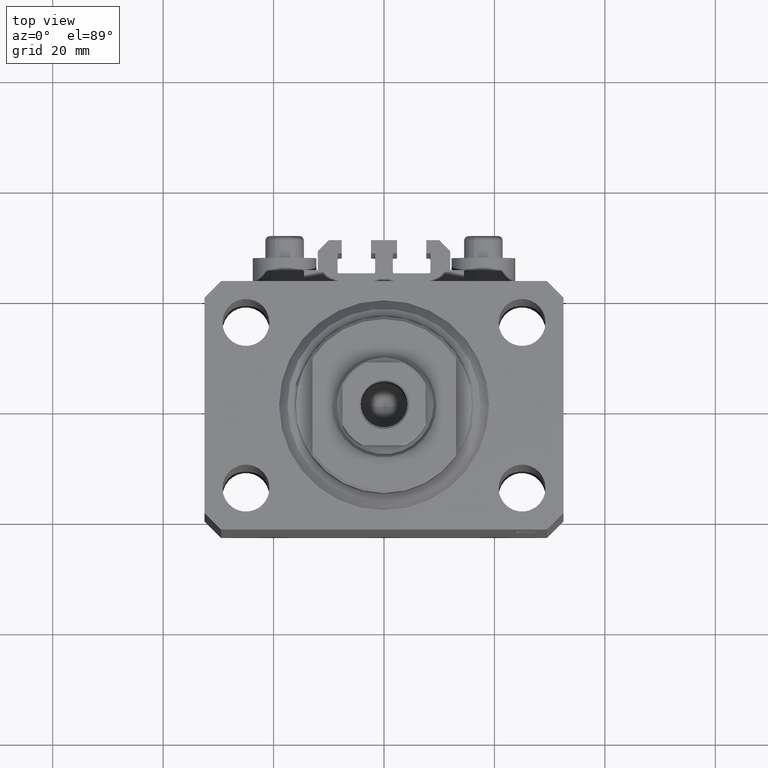
[diagram: clean part render]
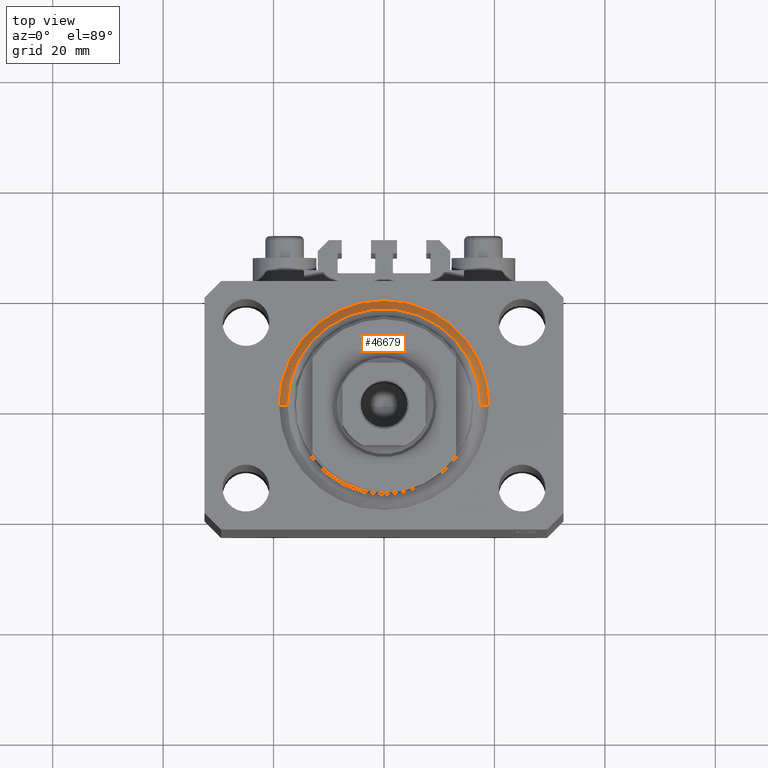
[diagram: same view with one face highlighted and labeled with its STEP entity id]
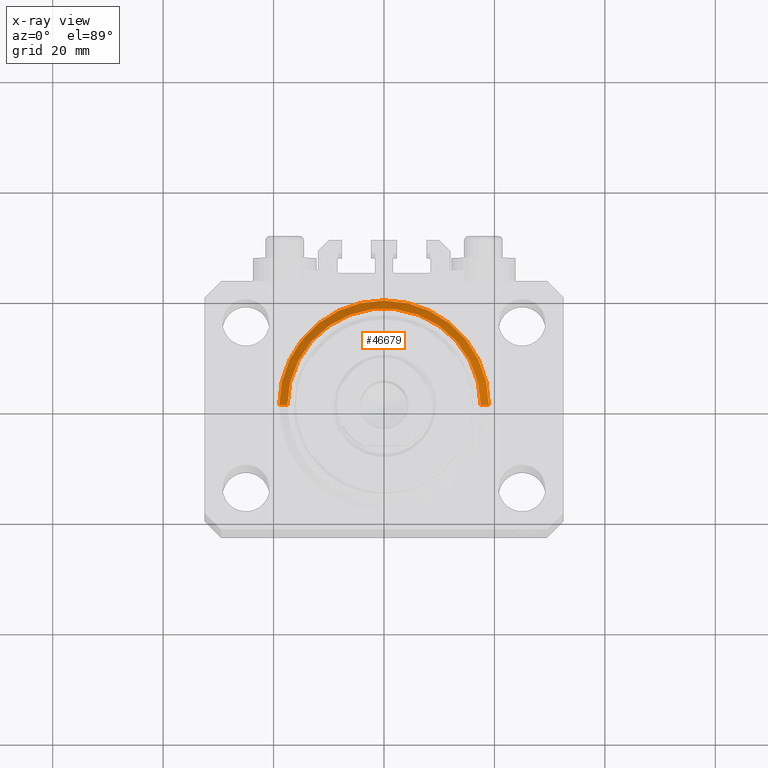
[diagram: x-ray of the same camera — body ghosted, the highlighted face saturated]
A machine part, top view. The second image highlights one B-rep face of the part: STEP entity #46679.
The next image is the same camera in x-ray: the body ghosted, the highlighted face saturated — about 0% of this face is hidden behind the body in this view.
In plain terms, the highlighted conical surface has half-angle 45 deg.
Its self-contained STEP definition (entity closure, byte-faithful):
#925 = EDGE_CURVE ( 'NONE', #30651, #45217, #34791, .T. ) ;
#2389 = CIRCLE ( 'NONE', #6192, 17.49999999999999289 ) ;
#4319 = DIRECTION ( 'NONE',  ( 1.000000000000000000, 0.000000000000000000, 0.000000000000000000 ) ) ;
#5891 = EDGE_CURVE ( 'NONE', #42631, #30651, #37187, .T. ) ;
#6192 = AXIS2_PLACEMENT_3D ( 'NONE', #26873, #37166, #4319 ) ;
#6582 = ORIENTED_EDGE ( 'NONE', *, *, #925, .F. ) ;
#6828 = CONICAL_SURFACE ( 'NONE', #22929, 19.00000000000000000, 0.7853981633974492782 ) ;
#11099 = VECTOR ( 'NONE', #40553, 1000.000000000000000 ) ;
#12867 = DIRECTION ( 'NONE',  ( 1.000000000000000000, 0.000000000000000000, 0.000000000000000000 ) ) ;
#14654 = CARTESIAN_POINT ( 'NONE',  ( -19.00000000000000000, 0.000000000000000000, 1.500000000000004885 ) ) ;
#16469 = FACE_OUTER_BOUND ( 'NONE', #46006, .T. ) ;
#17180 = AXIS2_PLACEMENT_3D ( 'NONE', #40276, #43883, #21354 ) ;
#21354 = DIRECTION ( 'NONE',  ( 1.000000000000000000, 0.000000000000000000, 0.000000000000000000 ) ) ;
#22929 = AXIS2_PLACEMENT_3D ( 'NONE', #45742, #38063, #12867 ) ;
#23286 = ORIENTED_EDGE ( 'NONE', *, *, #33561, .F. ) ;
#24069 = LINE ( 'NONE', #31496, #32291 ) ;
#24633 = CARTESIAN_POINT ( 'NONE',  ( 19.00000000000000000, 2.326828918379970970E-15, 1.500000000000004885 ) ) ;
#26177 = CARTESIAN_POINT ( 'NONE',  ( 19.00000000000000000, 0.000000000000000000, 1.500000000000004885 ) ) ;
#26873 = CARTESIAN_POINT ( 'NONE',  ( 0.000000000000000000, 0.000000000000000000, 0.000000000000000000 ) ) ;
#28055 = VERTEX_POINT ( 'NONE', #42181 ) ;
#28650 = EDGE_CURVE ( 'NONE', #28055, #45217, #24069, .T. ) ;
#30651 = VERTEX_POINT ( 'NONE', #24633 ) ;
#31496 = CARTESIAN_POINT ( 'NONE',  ( -19.00000000000000000, 2.326828918379970970E-15, 1.500000000000004885 ) ) ;
#32291 = VECTOR ( 'NONE', #41821, 1000.000000000000000 ) ;
#33257 = CARTESIAN_POINT ( 'NONE',  ( 17.49999999999999289, 0.000000000000000000, 0.000000000000000000 ) ) ;
#33561 = EDGE_CURVE ( 'NONE', #28055, #42631, #2389, .T. ) ;
#34791 = CIRCLE ( 'NONE', #17180, 19.00000000000000000 ) ;
#37166 = DIRECTION ( 'NONE',  ( -0.000000000000000000, -0.000000000000000000, -1.000000000000000000 ) ) ;
#37187 = LINE ( 'NONE', #26177, #11099 ) ;
#38063 = DIRECTION ( 'NONE',  ( -0.000000000000000000, -0.000000000000000000, 1.000000000000000000 ) ) ;
#38675 = ORIENTED_EDGE ( 'NONE', *, *, #28650, .T. ) ;
#40276 = CARTESIAN_POINT ( 'NONE',  ( 0.000000000000000000, 0.000000000000000000, 1.500000000000004885 ) ) ;
#40553 = DIRECTION ( 'NONE',  ( 0.7071067811865483499, 0.000000000000000000, 0.7071067811865467956 ) ) ;
#41821 = DIRECTION ( 'NONE',  ( -0.7071067811865483499, 8.659560562354943952E-17, 0.7071067811865467956 ) ) ;
#42181 = CARTESIAN_POINT ( 'NONE',  ( -17.49999999999999289, 2.234980408443919215E-15, 0.000000000000000000 ) ) ;
#42631 = VERTEX_POINT ( 'NONE', #33257 ) ;
#43883 = DIRECTION ( 'NONE',  ( -0.000000000000000000, -0.000000000000000000, 1.000000000000000000 ) ) ;
#44832 = ORIENTED_EDGE ( 'NONE', *, *, #5891, .F. ) ;
#45217 = VERTEX_POINT ( 'NONE', #14654 ) ;
#45742 = CARTESIAN_POINT ( 'NONE',  ( 0.000000000000000000, 0.000000000000000000, 1.500000000000004885 ) ) ;
#46006 = EDGE_LOOP ( 'NONE', ( #23286, #38675, #6582, #44832 ) ) ;
#46679 = ADVANCED_FACE ( 'NONE', ( #16469 ), #6828, .T. ) ;